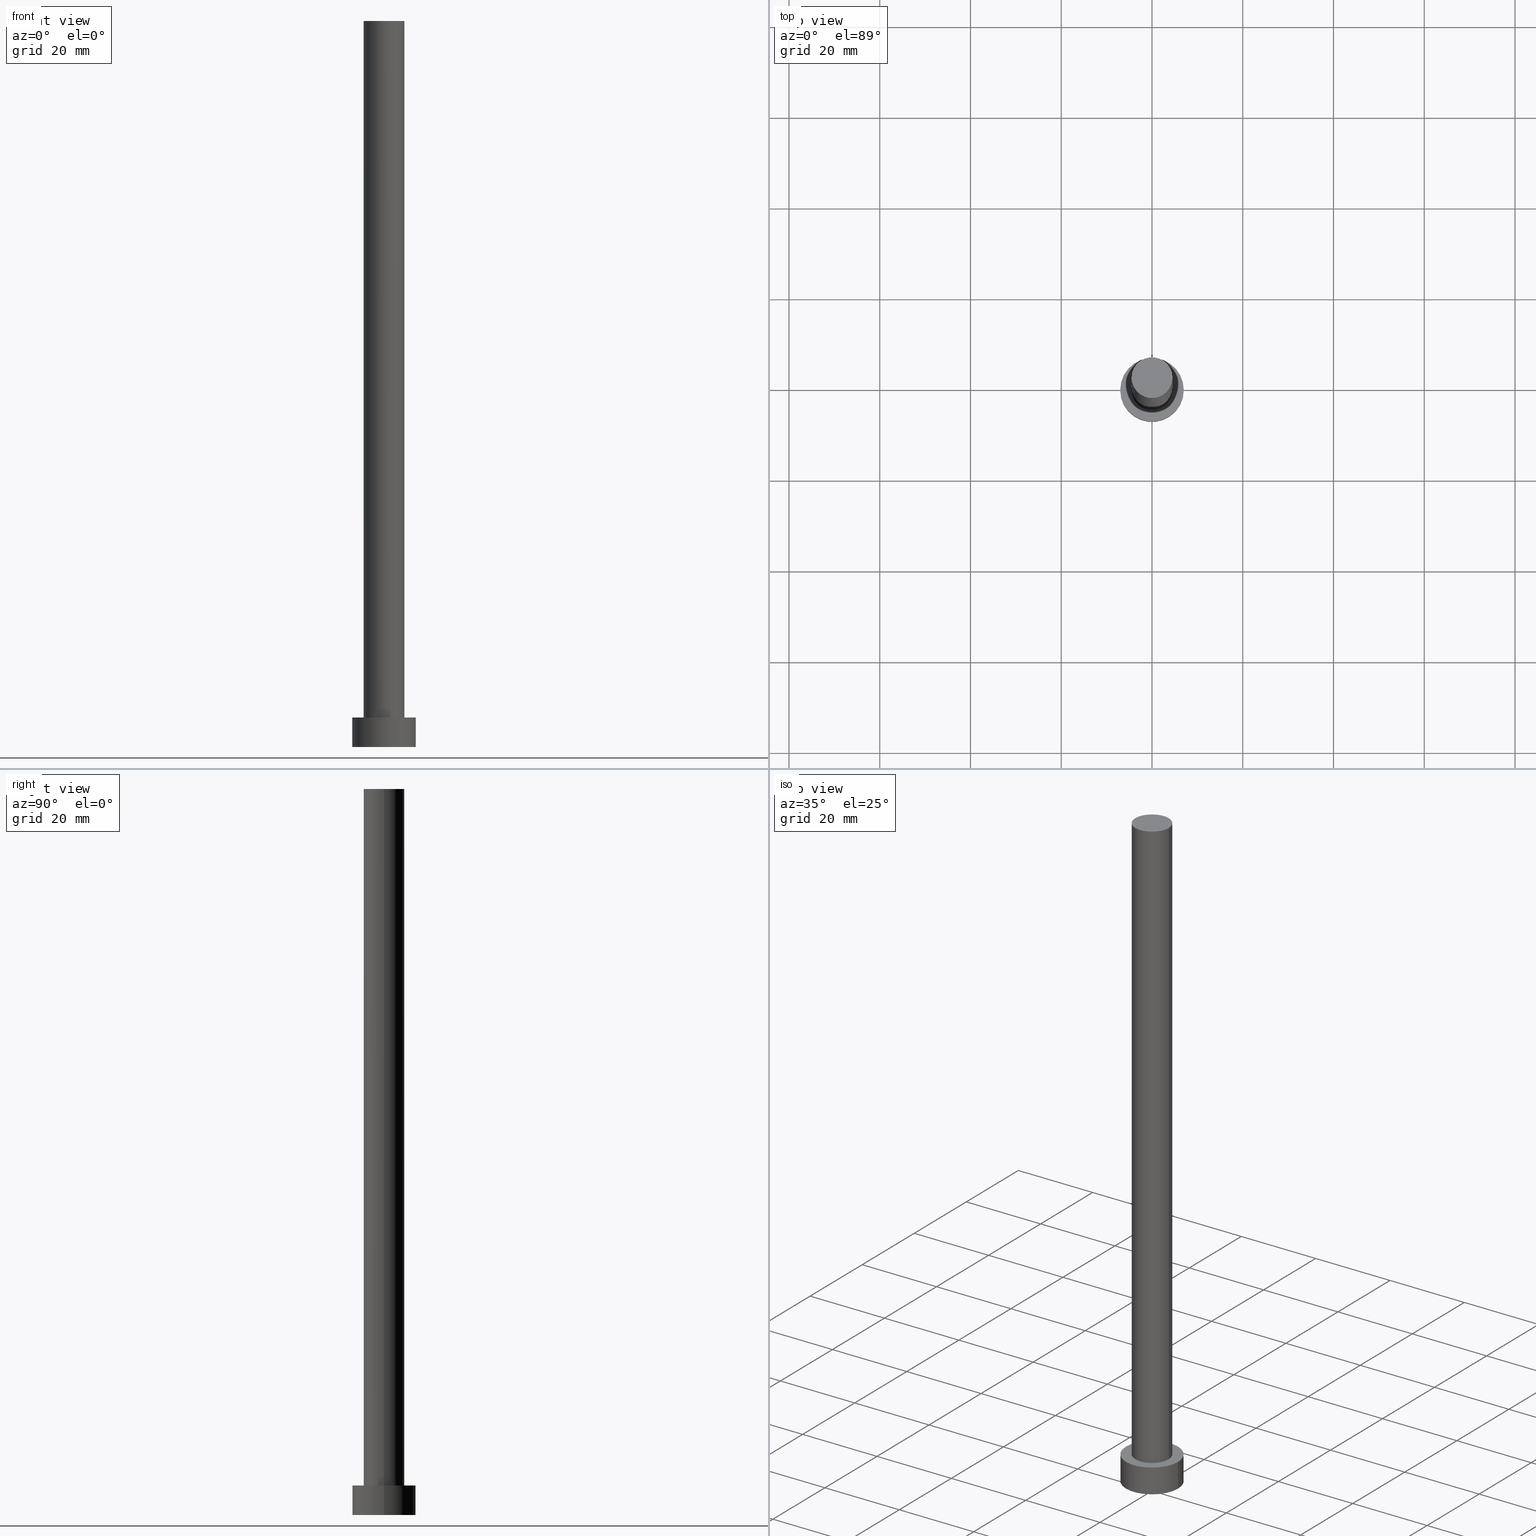
[diagram: canonical four-view strip — front | top / right | iso, engineering-drawing reading convention]
A machine part, canonical four-view strip (front | top / right | iso — engineering-drawing reading convention). The complete STEP part file that produces these views, byte-faithful:
ISO-10303-21;
HEADER;
FILE_DESCRIPTION (( 'STEP AP203' ),
    '1' );
FILE_NAME ('ea10.STEP',
    '2023-02-13T13:46:16',
    ( '' ),
    ( '' ),
    'SwSTEP 2.0',
    'SolidWorks 2019',
    '' );
FILE_SCHEMA (( 'CONFIG_CONTROL_DESIGN' ));
ENDSEC;

DATA;
#1 = DATE_AND_TIME ( #101, #53 ) ;
#2 = CARTESIAN_POINT ( 'NONE',  ( -7.000000000000000000, 0.000000000000000000, 0.000000000000000000 ) ) ;
#3 = DIRECTION ( 'NONE',  ( -0.000000000000000000, -0.000000000000000000, -1.000000000000000000 ) ) ;
#4 = ADVANCED_FACE ( 'NONE', ( #244 ), #193, .T. ) ;
#5 = PRODUCT_DEFINITION_FORMATION_WITH_SPECIFIED_SOURCE ( 'LIBOVOLN�', '', #239, .NOT_KNOWN. ) ;
#6 = CARTESIAN_POINT ( 'NONE',  ( 0.000000000000000000, 0.000000000000000000, 160.0000000000000000 ) ) ;
#7 = ORIENTED_EDGE ( 'NONE', *, *, #210, .T. ) ;
#8 = EDGE_LOOP ( 'NONE', ( #93, #173 ) ) ;
#9 = ORIENTED_EDGE ( 'NONE', *, *, #232, .T. ) ;
#10 = ORIENTED_EDGE ( 'NONE', *, *, #166, .F. ) ;
#11 = DIRECTION ( 'NONE',  ( 0.000000000000000000, 0.000000000000000000, 1.000000000000000000 ) ) ;
#12 = PERSON_AND_ORGANIZATION_ROLE ( 'design_owner' ) ;
#13 = FACE_OUTER_BOUND ( 'NONE', #8, .T. ) ;
#14 = PERSON_AND_ORGANIZATION_ROLE ( 'classification_officer' ) ;
#15 = DIRECTION ( 'NONE',  ( 0.000000000000000000, 0.000000000000000000, 1.000000000000000000 ) ) ;
#16 = APPROVAL_STATUS ( 'not_yet_approved' ) ;
#17 = COORDINATED_UNIVERSAL_TIME_OFFSET ( 1, 0, .AHEAD. ) ;
#18 = AXIS2_PLACEMENT_3D ( 'NONE', #174, #3, #67 ) ;
#19 = SECURITY_CLASSIFICATION ( '', '', #255 ) ;
#20 = EDGE_CURVE ( 'NONE', #251, #183, #107, .T. ) ;
#21 = DIRECTION ( 'NONE',  ( 0.000000000000000000, 0.000000000000000000, 1.000000000000000000 ) ) ;
#22 = ADVANCED_FACE ( 'NONE', ( #13 ), #76, .T. ) ;
#23 = VERTEX_POINT ( 'NONE', #167 ) ;
#24 = AXIS2_PLACEMENT_3D ( 'NONE', #61, #21, #36 ) ;
#25 = FACE_OUTER_BOUND ( 'NONE', #71, .T. ) ;
#26 = CC_DESIGN_PERSON_AND_ORGANIZATION_ASSIGNMENT ( #246, #12, ( #239 ) ) ;
#27 = CARTESIAN_POINT ( 'NONE',  ( 0.000000000000000000, 0.000000000000000000, 160.0000000000000000 ) ) ;
#28 =( GEOMETRIC_REPRESENTATION_CONTEXT ( 3 ) GLOBAL_UNCERTAINTY_ASSIGNED_CONTEXT ( ( #31 ) ) GLOBAL_UNIT_ASSIGNED_CONTEXT ( ( #237, #144, #44 ) ) REPRESENTATION_CONTEXT ( 'NONE', 'WORKASPACE' ) );
#29 = MECHANICAL_CONTEXT ( 'NONE', #51, 'mechanical' ) ;
#30 = ORIENTED_EDGE ( 'NONE', *, *, #40, .F. ) ;
#31 = UNCERTAINTY_MEASURE_WITH_UNIT (LENGTH_MEASURE( 1.000000000000000082E-05 ), #237, 'distance_accuracy_value', 'NONE');
#32 = ADVANCED_FACE ( 'NONE', ( #79 ), #248, .T. ) ;
#33 = LOCAL_TIME ( 14, 46, 16.00000000000000000, #35 ) ;
#34 = DIRECTION ( 'NONE',  ( 1.000000000000000000, 0.000000000000000000, 0.000000000000000000 ) ) ;
#35 = COORDINATED_UNIVERSAL_TIME_OFFSET ( 1, 0, .AHEAD. ) ;
#36 = DIRECTION ( 'NONE',  ( 1.000000000000000000, 0.000000000000000000, 0.000000000000000000 ) ) ;
#37 = PERSON_AND_ORGANIZATION_ROLE ( 'creator' ) ;
#38 = DATE_TIME_ROLE ( 'classification_date' ) ;
#39 = LOCAL_TIME ( 14, 46, 16.00000000000000000, #254 ) ;
#40 = EDGE_CURVE ( 'NONE', #168, #251, #203, .T. ) ;
#41 = DIRECTION ( 'NONE',  ( 1.000000000000000000, 0.000000000000000000, -0.000000000000000000 ) ) ;
#42 = CARTESIAN_POINT ( 'NONE',  ( -4.500000000000000888, 0.000000000000000000, 6.500000000000000000 ) ) ;
#43 = APPROVAL ( #16, 'NEUR�EN�' ) ;
#44 =( NAMED_UNIT ( * ) SI_UNIT ( $, .STERADIAN. ) SOLID_ANGLE_UNIT ( ) );
#45 = PRODUCT_DEFINITION_SHAPE ( 'NONE', 'NONE',  #142 ) ;
#46 = FACE_OUTER_BOUND ( 'NONE', #91, .T. ) ;
#47 = CIRCLE ( 'NONE', #176, 7.000000000000000000 ) ;
#48 = CARTESIAN_POINT ( 'NONE',  ( -4.500000000000000888, 0.000000000000000000, 160.0000000000000000 ) ) ;
#49 = ORIENTED_EDGE ( 'NONE', *, *, #109, .F. ) ;
#50 = CC_DESIGN_PERSON_AND_ORGANIZATION_ASSIGNMENT ( #100, #62, ( #5 ) ) ;
#51 = APPLICATION_CONTEXT ( 'configuration controlled 3d designs of mechanical parts and assemblies' ) ;
#52 = ORIENTED_EDGE ( 'NONE', *, *, #179, .F. ) ;
#53 = LOCAL_TIME ( 14, 46, 16.00000000000000000, #17 ) ;
#54 = APPLICATION_PROTOCOL_DEFINITION ( 'international standard', 'config_control_design', 1994, #51 ) ;
#55 = CARTESIAN_POINT ( 'NONE',  ( 0.000000000000000000, 0.000000000000000000, 6.500000000000000000 ) ) ;
#56 = APPLICATION_PROTOCOL_DEFINITION ( 'international standard', 'config_control_design', 1994, #189 ) ;
#57 = CARTESIAN_POINT ( 'NONE',  ( -4.500000000000000888, 0.000000000000000000, 160.0000000000000000 ) ) ;
#58 = CARTESIAN_POINT ( 'NONE',  ( 0.000000000000000000, 0.000000000000000000, 0.000000000000000000 ) ) ;
#59 = AXIS2_PLACEMENT_3D ( 'NONE', #224, #181, #75 ) ;
#60 = APPROVAL_DATE_TIME ( #116, #249 ) ;
#61 = CARTESIAN_POINT ( 'NONE',  ( 0.000000000000000000, 0.000000000000000000, 6.500000000000000000 ) ) ;
#62 = PERSON_AND_ORGANIZATION_ROLE ( 'design_supplier' ) ;
#63 = CARTESIAN_POINT ( 'NONE',  ( 0.000000000000000000, 0.000000000000000000, 160.0000000000000000 ) ) ;
#64 = CC_DESIGN_DATE_AND_TIME_ASSIGNMENT ( #169, #209, ( #142 ) ) ;
#65 = DIRECTION ( 'NONE',  ( 0.000000000000000000, 0.000000000000000000, 1.000000000000000000 ) ) ;
#66 = DIRECTION ( 'NONE',  ( 0.000000000000000000, 0.000000000000000000, 1.000000000000000000 ) ) ;
#67 = DIRECTION ( 'NONE',  ( -1.000000000000000000, 0.000000000000000000, 0.000000000000000000 ) ) ;
#68 = ORIENTED_EDGE ( 'NONE', *, *, #250, .F. ) ;
#69 = AXIS2_PLACEMENT_3D ( 'NONE', #223, #184, #111 ) ;
#70 = ORIENTED_EDGE ( 'NONE', *, *, #109, .T. ) ;
#71 = EDGE_LOOP ( 'NONE', ( #182, #225 ) ) ;
#72 = EDGE_LOOP ( 'NONE', ( #219, #200, #7, #151 ) ) ;
#73 = AXIS2_PLACEMENT_3D ( 'NONE', #126, #88, #104 ) ;
#74 = ORIENTED_EDGE ( 'NONE', *, *, #143, .T. ) ;
#75 = DIRECTION ( 'NONE',  ( 1.000000000000000000, 0.000000000000000000, 0.000000000000000000 ) ) ;
#76 = PLANE ( 'NONE',  #146 ) ;
#77 = APPROVAL_STATUS ( 'not_yet_approved' ) ;
#78 = CC_DESIGN_APPROVAL ( #165, ( #5 ) ) ;
#79 = FACE_OUTER_BOUND ( 'NONE', #72, .T. ) ;
#80 = PERSON_AND_ORGANIZATION ( #140, #201 ) ;
#81 = EDGE_CURVE ( 'NONE', #23, #127, #206, .T. ) ;
#82 = AXIS2_PLACEMENT_3D ( 'NONE', #253, #214, #150 ) ;
#83 = CARTESIAN_POINT ( 'NONE',  ( 7.000000000000000000, 8.572527594031471218E-16, 6.500000000000000000 ) ) ;
#84 = PLANE ( 'NONE',  #73 ) ;
#85 = CIRCLE ( 'NONE', #24, 7.000000000000000000 ) ;
#86 = CARTESIAN_POINT ( 'NONE',  ( -7.000000000000000000, 0.000000000000000000, 6.500000000000000000 ) ) ;
#87 = APPROVAL_PERSON_ORGANIZATION ( #188, #43, #190 ) ;
#88 = DIRECTION ( 'NONE',  ( 0.000000000000000000, 0.000000000000000000, 1.000000000000000000 ) ) ;
#89 = CIRCLE ( 'NONE', #217, 7.000000000000000000 ) ;
#90 = DESIGN_CONTEXT ( 'detailed design', #189, 'design' ) ;
#91 = EDGE_LOOP ( 'NONE', ( #94, #129, #108, #68 ) ) ;
#92 = VERTEX_POINT ( 'NONE', #226 ) ;
#93 = ORIENTED_EDGE ( 'NONE', *, *, #179, .T. ) ;
#94 = ORIENTED_EDGE ( 'NONE', *, *, #130, .F. ) ;
#95 = CIRCLE ( 'NONE', #220, 4.500000000000000888 ) ;
#96 = PERSON_AND_ORGANIZATION ( #140, #201 ) ;
#97 = DIRECTION ( 'NONE',  ( 0.000000000000000000, 0.000000000000000000, 1.000000000000000000 ) ) ;
#98 = PERSON_AND_ORGANIZATION ( #140, #201 ) ;
#99 = DIRECTION ( 'NONE',  ( 0.000000000000000000, 0.000000000000000000, 1.000000000000000000 ) ) ;
#100 = PERSON_AND_ORGANIZATION ( #140, #201 ) ;
#101 = CALENDAR_DATE ( 2023, 13, 2 ) ;
#102 = LINE ( 'NONE', #83, #125 ) ;
#103 = APPROVAL_DATE_TIME ( #1, #43 ) ;
#104 = DIRECTION ( 'NONE',  ( 1.000000000000000000, 0.000000000000000000, -0.000000000000000000 ) ) ;
#105 = DIRECTION ( 'NONE',  ( -1.000000000000000000, 0.000000000000000000, 0.000000000000000000 ) ) ;
#106 = APPROVAL_STATUS ( 'not_yet_approved' ) ;
#107 = CIRCLE ( 'NONE', #234, 4.500000000000000888 ) ;
#108 = ORIENTED_EDGE ( 'NONE', *, *, #20, .T. ) ;
#109 = EDGE_CURVE ( 'NONE', #92, #132, #89, .T. ) ;
#110 = VERTEX_POINT ( 'NONE', #57 ) ;
#111 = DIRECTION ( 'NONE',  ( -1.000000000000000000, 0.000000000000000000, 0.000000000000000000 ) ) ;
#112 = CC_DESIGN_PERSON_AND_ORGANIZATION_ASSIGNMENT ( #212, #14, ( #19 ) ) ;
#113 = PERSON_AND_ORGANIZATION ( #140, #201 ) ;
#114 = ADVANCED_FACE ( 'NONE', ( #211 ), #194, .F. ) ;
#115 = CARTESIAN_POINT ( 'NONE',  ( -7.000000000000000000, 0.000000000000000000, 6.500000000000000000 ) ) ;
#116 = DATE_AND_TIME ( #186, #33 ) ;
#117 = COORDINATED_UNIVERSAL_TIME_OFFSET ( 1, 0, .AHEAD. ) ;
#118 = CC_DESIGN_SECURITY_CLASSIFICATION ( #19, ( #5 ) ) ;
#119 = EDGE_CURVE ( 'NONE', #127, #23, #85, .T. ) ;
#120 = DIRECTION ( 'NONE',  ( 0.000000000000000000, 0.000000000000000000, 1.000000000000000000 ) ) ;
#121 = CARTESIAN_POINT ( 'NONE',  ( 0.000000000000000000, 0.000000000000000000, 0.000000000000000000 ) ) ;
#122 = CARTESIAN_POINT ( 'NONE',  ( 4.500000000000000888, 5.510910596163089556E-16, 160.0000000000000000 ) ) ;
#123 = FACE_BOUND ( 'NONE', #242, .T. ) ;
#124 = DIRECTION ( 'NONE',  ( -0.000000000000000000, -0.000000000000000000, -1.000000000000000000 ) ) ;
#125 = VECTOR ( 'NONE', #158, 1000.000000000000000 ) ;
#126 = CARTESIAN_POINT ( 'NONE',  ( 0.000000000000000000, 0.000000000000000000, 6.500000000000000000 ) ) ;
#127 = VERTEX_POINT ( 'NONE', #115 ) ;
#128 = DIRECTION ( 'NONE',  ( -0.000000000000000000, -0.000000000000000000, -1.000000000000000000 ) ) ;
#129 = ORIENTED_EDGE ( 'NONE', *, *, #40, .T. ) ;
#130 = EDGE_CURVE ( 'NONE', #168, #110, #95, .T. ) ;
#131 = VECTOR ( 'NONE', #196, 1000.000000000000000 ) ;
#132 = VERTEX_POINT ( 'NONE', #2 ) ;
#133 = CLOSED_SHELL ( 'NONE', ( #236, #4, #32, #202, #114, #216, #22 ) ) ;
#134 = ORIENTED_EDGE ( 'NONE', *, *, #20, .F. ) ;
#135 = DIRECTION ( 'NONE',  ( 0.000000000000000000, 0.000000000000000000, 1.000000000000000000 ) ) ;
#136 = AXIS2_PLACEMENT_3D ( 'NONE', #121, #135, #207 ) ;
#137 = DATE_AND_TIME ( #139, #161 ) ;
#138 = DIRECTION ( 'NONE',  ( 1.000000000000000000, 0.000000000000000000, 0.000000000000000000 ) ) ;
#139 = CALENDAR_DATE ( 2023, 13, 2 ) ;
#140 = PERSON ( 'NEUR�EN�', 'NEUR�EN�', 'NEUR�EN�', ('NEUR�EN�'), ('NEUR�EN�'), ('NEUR�EN�') ) ;
#141 = CARTESIAN_POINT ( 'NONE',  ( 0.000000000000000000, 0.000000000000000000, 0.000000000000000000 ) ) ;
#142 = PRODUCT_DEFINITION ( 'NEZN�M�', '', #5, #90 ) ;
#143 = EDGE_CURVE ( 'NONE', #23, #92, #102, .T. ) ;
#144 =( NAMED_UNIT ( * ) PLANE_ANGLE_UNIT ( ) SI_UNIT ( $, .RADIAN. ) );
#145 = AXIS2_PLACEMENT_3D ( 'NONE', #27, #124, #105 ) ;
#146 = AXIS2_PLACEMENT_3D ( 'NONE', #187, #120, #41 ) ;
#147 = CARTESIAN_POINT ( 'NONE',  ( 0.000000000000000000, 0.000000000000000000, 6.500000000000000000 ) ) ;
#148 = ORIENTED_EDGE ( 'NONE', *, *, #81, .F. ) ;
#149 = CC_DESIGN_APPROVAL ( #249, ( #142 ) ) ;
#150 = DIRECTION ( 'NONE',  ( -1.000000000000000000, 0.000000000000000000, 0.000000000000000000 ) ) ;
#151 = ORIENTED_EDGE ( 'NONE', *, *, #166, .T. ) ;
#152 = EDGE_LOOP ( 'NONE', ( #148, #74, #70, #204 ) ) ;
#153 = MANIFOLD_SOLID_BREP ( 'P�idat vysunut�m3', #133 ) ;
#154 = COORDINATED_UNIVERSAL_TIME_OFFSET ( 1, 0, .AHEAD. ) ;
#155 = CARTESIAN_POINT ( 'NONE',  ( 4.500000000000000888, 5.510910596163089556E-16, 160.0000000000000000 ) ) ;
#156 = APPROVAL_ROLE ( '' ) ;
#157 = VECTOR ( 'NONE', #230, 1000.000000000000000 ) ;
#158 = DIRECTION ( 'NONE',  ( -0.000000000000000000, -0.000000000000000000, -1.000000000000000000 ) ) ;
#159 = DIRECTION ( 'NONE',  ( 1.000000000000000000, 0.000000000000000000, 0.000000000000000000 ) ) ;
#160 = CYLINDRICAL_SURFACE ( 'NONE', #18, 4.500000000000000888 ) ;
#161 = LOCAL_TIME ( 14, 46, 16.00000000000000000, #117 ) ;
#162 = SHAPE_DEFINITION_REPRESENTATION ( #45, #192 ) ;
#163 = LINE ( 'NONE', #86, #131 ) ;
#164 = AXIS2_PLACEMENT_3D ( 'NONE', #6, #66, #159 ) ;
#165 = APPROVAL ( #77, 'NEUR�EN�' ) ;
#166 = EDGE_CURVE ( 'NONE', #132, #92, #47, .T. ) ;
#167 = CARTESIAN_POINT ( 'NONE',  ( 7.000000000000000000, 8.572527594031471218E-16, 6.500000000000000000 ) ) ;
#168 = VERTEX_POINT ( 'NONE', #122 ) ;
#169 = DATE_AND_TIME ( #252, #177 ) ;
#170 = DIRECTION ( 'NONE',  ( 1.000000000000000000, 0.000000000000000000, 0.000000000000000000 ) ) ;
#171 = PERSON_AND_ORGANIZATION_ROLE ( 'creator' ) ;
#172 = DATE_AND_TIME ( #231, #39 ) ;
#173 = ORIENTED_EDGE ( 'NONE', *, *, #130, .T. ) ;
#174 = CARTESIAN_POINT ( 'NONE',  ( 0.000000000000000000, 0.000000000000000000, 160.0000000000000000 ) ) ;
#175 = DIRECTION ( 'NONE',  ( 1.000000000000000000, 0.000000000000000000, 0.000000000000000000 ) ) ;
#176 = AXIS2_PLACEMENT_3D ( 'NONE', #141, #65, #240 ) ;
#177 = LOCAL_TIME ( 14, 46, 16.00000000000000000, #154 ) ;
#178 = CC_DESIGN_PERSON_AND_ORGANIZATION_ASSIGNMENT ( #80, #37, ( #5 ) ) ;
#179 = EDGE_CURVE ( 'NONE', #110, #168, #229, .T. ) ;
#180 = APPROVAL_PERSON_ORGANIZATION ( #96, #249, #205 ) ;
#181 = DIRECTION ( 'NONE',  ( 0.000000000000000000, 0.000000000000000000, 1.000000000000000000 ) ) ;
#182 = ORIENTED_EDGE ( 'NONE', *, *, #119, .T. ) ;
#183 = VERTEX_POINT ( 'NONE', #42 ) ;
#184 = DIRECTION ( 'NONE',  ( -0.000000000000000000, -0.000000000000000000, -1.000000000000000000 ) ) ;
#185 = CIRCLE ( 'NONE', #213, 4.500000000000000888 ) ;
#186 = CALENDAR_DATE ( 2023, 13, 2 ) ;
#187 = CARTESIAN_POINT ( 'NONE',  ( 0.000000000000000000, 0.000000000000000000, 160.0000000000000000 ) ) ;
#188 = PERSON_AND_ORGANIZATION ( #140, #201 ) ;
#189 = APPLICATION_CONTEXT ( 'configuration controlled 3d designs of mechanical parts and assemblies' ) ;
#190 = APPROVAL_ROLE ( '' ) ;
#191 = APPROVAL_PERSON_ORGANIZATION ( #113, #165, #156 ) ;
#192 = ADVANCED_BREP_SHAPE_REPRESENTATION ( 'ea10', ( #153, #59 ), #28 ) ;
#193 = CYLINDRICAL_SURFACE ( 'NONE', #82, 7.000000000000000000 ) ;
#194 = PLANE ( 'NONE',  #136 ) ;
#195 = CARTESIAN_POINT ( 'NONE',  ( 4.500000000000000888, 5.510910596163089556E-16, 6.500000000000000000 ) ) ;
#196 = DIRECTION ( 'NONE',  ( -0.000000000000000000, -0.000000000000000000, -1.000000000000000000 ) ) ;
#197 = LINE ( 'NONE', #48, #245 ) ;
#198 = AXIS2_PLACEMENT_3D ( 'NONE', #227, #15, #34 ) ;
#199 = CC_DESIGN_DATE_AND_TIME_ASSIGNMENT ( #137, #38, ( #19 ) ) ;
#200 = ORIENTED_EDGE ( 'NONE', *, *, #119, .F. ) ;
#201 = ORGANIZATION ( 'NEUR�EN�', 'NEUR�EN�', '' ) ;
#202 = ADVANCED_FACE ( 'NONE', ( #123, #25 ), #84, .T. ) ;
#203 = LINE ( 'NONE', #155, #157 ) ;
#204 = ORIENTED_EDGE ( 'NONE', *, *, #210, .F. ) ;
#205 = APPROVAL_ROLE ( '' ) ;
#206 = CIRCLE ( 'NONE', #198, 7.000000000000000000 ) ;
#207 = DIRECTION ( 'NONE',  ( 1.000000000000000000, 0.000000000000000000, -0.000000000000000000 ) ) ;
#208 = PRODUCT_RELATED_PRODUCT_CATEGORY ( 'detail', '', ( #239 ) ) ;
#209 = DATE_TIME_ROLE ( 'creation_date' ) ;
#210 = EDGE_CURVE ( 'NONE', #127, #132, #163, .T. ) ;
#211 = FACE_OUTER_BOUND ( 'NONE', #241, .T. ) ;
#212 = PERSON_AND_ORGANIZATION ( #140, #201 ) ;
#213 = AXIS2_PLACEMENT_3D ( 'NONE', #147, #215, #175 ) ;
#214 = DIRECTION ( 'NONE',  ( -0.000000000000000000, -0.000000000000000000, -1.000000000000000000 ) ) ;
#215 = DIRECTION ( 'NONE',  ( 0.000000000000000000, 0.000000000000000000, 1.000000000000000000 ) ) ;
#216 = ADVANCED_FACE ( 'NONE', ( #238 ), #160, .T. ) ;
#217 = AXIS2_PLACEMENT_3D ( 'NONE', #58, #97, #235 ) ;
#218 = CYLINDRICAL_SURFACE ( 'NONE', #145, 4.500000000000000888 ) ;
#219 = ORIENTED_EDGE ( 'NONE', *, *, #143, .F. ) ;
#220 = AXIS2_PLACEMENT_3D ( 'NONE', #63, #99, #138 ) ;
#221 = CC_DESIGN_APPROVAL ( #43, ( #19 ) ) ;
#222 = EDGE_LOOP ( 'NONE', ( #30, #52, #243, #9 ) ) ;
#223 = CARTESIAN_POINT ( 'NONE',  ( 0.000000000000000000, 0.000000000000000000, 6.500000000000000000 ) ) ;
#224 = CARTESIAN_POINT ( 'NONE',  ( 0.000000000000000000, 0.000000000000000000, 0.000000000000000000 ) ) ;
#225 = ORIENTED_EDGE ( 'NONE', *, *, #81, .T. ) ;
#226 = CARTESIAN_POINT ( 'NONE',  ( 7.000000000000000000, 8.572527594031471218E-16, 0.000000000000000000 ) ) ;
#227 = CARTESIAN_POINT ( 'NONE',  ( 0.000000000000000000, 0.000000000000000000, 6.500000000000000000 ) ) ;
#228 = APPROVAL_DATE_TIME ( #172, #165 ) ;
#229 = CIRCLE ( 'NONE', #164, 4.500000000000000888 ) ;
#230 = DIRECTION ( 'NONE',  ( -0.000000000000000000, -0.000000000000000000, -1.000000000000000000 ) ) ;
#231 = CALENDAR_DATE ( 2023, 13, 2 ) ;
#232 = EDGE_CURVE ( 'NONE', #183, #251, #185, .T. ) ;
#233 = CC_DESIGN_PERSON_AND_ORGANIZATION_ASSIGNMENT ( #98, #171, ( #142 ) ) ;
#234 = AXIS2_PLACEMENT_3D ( 'NONE', #55, #11, #170 ) ;
#235 = DIRECTION ( 'NONE',  ( 1.000000000000000000, 0.000000000000000000, 0.000000000000000000 ) ) ;
#236 = ADVANCED_FACE ( 'NONE', ( #46 ), #218, .T. ) ;
#237 =( LENGTH_UNIT ( ) NAMED_UNIT ( * ) SI_UNIT ( .MILLI., .METRE. ) );
#238 = FACE_OUTER_BOUND ( 'NONE', #222, .T. ) ;
#239 = PRODUCT ( 'ea10', 'ea10', '', ( #29 ) ) ;
#240 = DIRECTION ( 'NONE',  ( 1.000000000000000000, 0.000000000000000000, 0.000000000000000000 ) ) ;
#241 = EDGE_LOOP ( 'NONE', ( #10, #49 ) ) ;
#242 = EDGE_LOOP ( 'NONE', ( #247, #134 ) ) ;
#243 = ORIENTED_EDGE ( 'NONE', *, *, #250, .T. ) ;
#244 = FACE_OUTER_BOUND ( 'NONE', #152, .T. ) ;
#245 = VECTOR ( 'NONE', #128, 1000.000000000000000 ) ;
#246 = PERSON_AND_ORGANIZATION ( #140, #201 ) ;
#247 = ORIENTED_EDGE ( 'NONE', *, *, #232, .F. ) ;
#248 = CYLINDRICAL_SURFACE ( 'NONE', #69, 7.000000000000000000 ) ;
#249 = APPROVAL ( #106, 'NEUR�EN�' ) ;
#250 = EDGE_CURVE ( 'NONE', #110, #183, #197, .T. ) ;
#251 = VERTEX_POINT ( 'NONE', #195 ) ;
#252 = CALENDAR_DATE ( 2023, 13, 2 ) ;
#253 = CARTESIAN_POINT ( 'NONE',  ( 0.000000000000000000, 0.000000000000000000, 6.500000000000000000 ) ) ;
#254 = COORDINATED_UNIVERSAL_TIME_OFFSET ( 1, 0, .AHEAD. ) ;
#255 = SECURITY_CLASSIFICATION_LEVEL ( 'unclassified' ) ;
ENDSEC;
END-ISO-10303-21;
